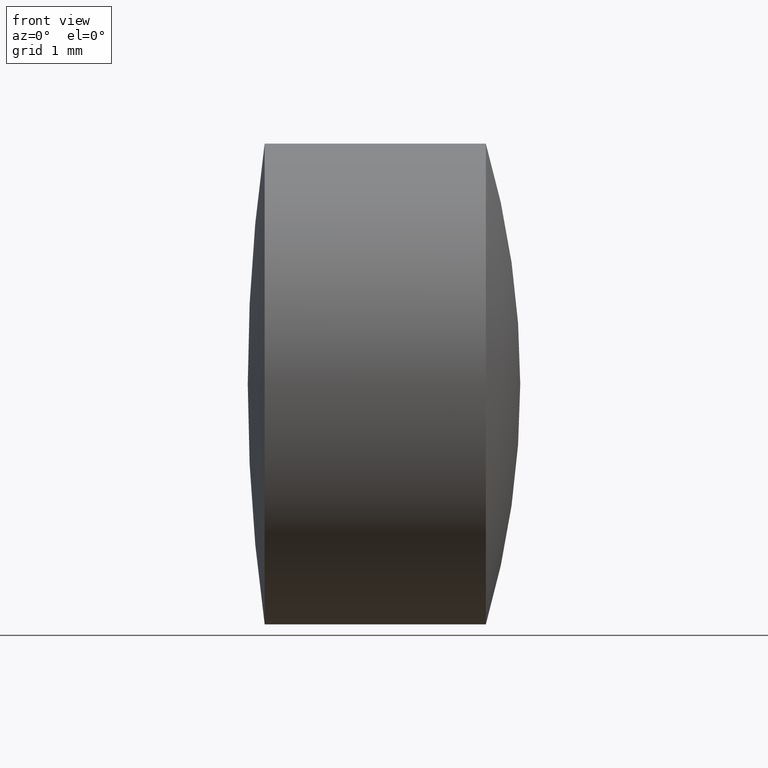
[diagram: clean part render]
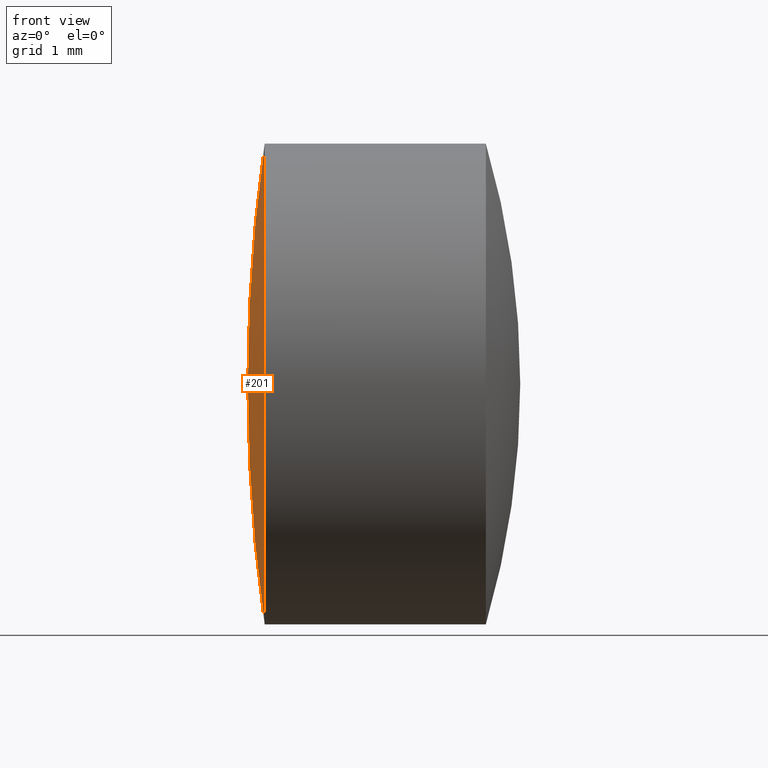
[diagram: same view with one face highlighted and labeled with its STEP entity id]
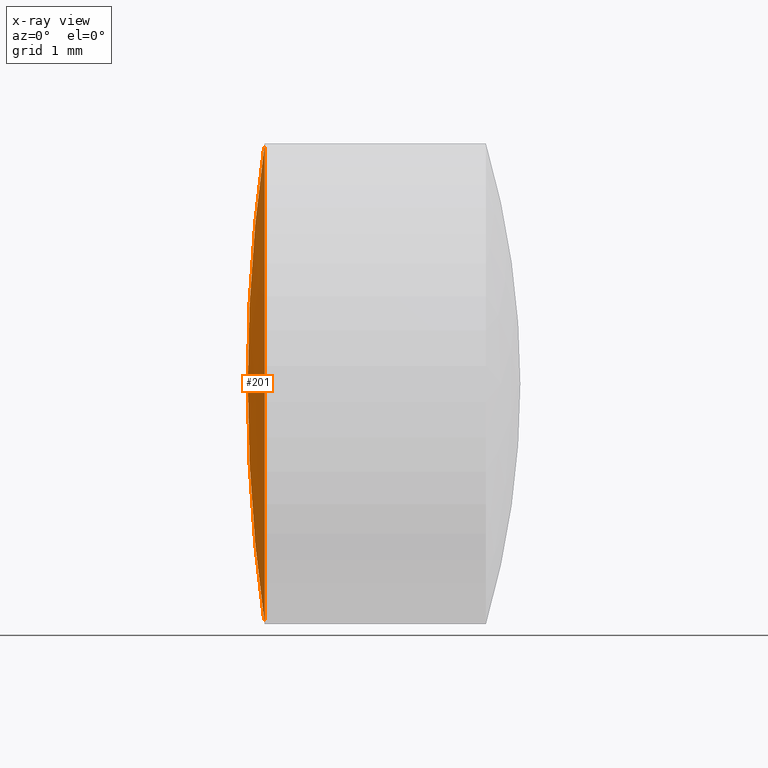
[diagram: x-ray of the same camera — body ghosted, the highlighted face saturated]
A machine part, front view. The second image highlights one B-rep face of the part: STEP entity #201.
The next image is the same camera in x-ray: the body ghosted, the highlighted face saturated — about 0% of this face is hidden behind the body in this view.
In plain terms, the highlighted spherical surface has radius 22.7 mm.
Its self-contained STEP definition (entity closure, byte-faithful):
#8 = DIRECTION ( 'NONE',  ( -0.0000000000000000000, 1.000000000000000000, 1.224646799147353200E-016 ) ) ;
#12 = EDGE_CURVE ( 'NONE', #299, #139, #310, .T. ) ;
#17 = CARTESIAN_POINT ( 'NONE',  ( 23.94795948408310700, 0.0000000000000000000, -4.028288892016745600E-017 ) ) ;
#18 = FACE_OUTER_BOUND ( 'NONE', #100, .T. ) ;
#26 = SPHERICAL_SURFACE ( 'NONE', #230, 22.70000000000001700 ) ;
#37 = CARTESIAN_POINT ( 'NONE',  ( 1.471096379993141400, 0.0000000000000000000, 0.0000000000000000000 ) ) ;
#64 = CARTESIAN_POINT ( 'NONE',  ( 1.471096379993142000, 0.0000000000000000000, 3.174999999999998500 ) ) ;
#68 = CARTESIAN_POINT ( 'NONE',  ( 1.471096379993142000, 3.888253587292844600E-016, -3.174999999999998500 ) ) ;
#74 = CIRCLE ( 'NONE', #291, 22.70000000000001700 ) ;
#78 = ORIENTED_EDGE ( 'NONE', *, *, #209, .T. ) ;
#97 = DIRECTION ( 'NONE',  ( 0.0000000000000000000, 0.0000000000000000000, 1.000000000000000000 ) ) ;
#98 = DIRECTION ( 'NONE',  ( 0.0000000000000000000, 0.0000000000000000000, -1.000000000000000000 ) ) ;
#100 = EDGE_LOOP ( 'NONE', ( #156, #295, #78 ) ) ;
#117 = CARTESIAN_POINT ( 'NONE',  ( 23.94795948408310700, 0.0000000000000000000, -4.028288892016745600E-017 ) ) ;
#118 = AXIS2_PLACEMENT_3D ( 'NONE', #37, #322, #97 ) ;
#125 = EDGE_CURVE ( 'NONE', #299, #167, #258, .T. ) ;
#139 = VERTEX_POINT ( 'NONE', #287 ) ;
#150 = DIRECTION ( 'NONE',  ( 0.0000000000000000000, -1.000000000000000000, 0.0000000000000000000 ) ) ;
#152 = CARTESIAN_POINT ( 'NONE',  ( 23.94795948408310700, 0.0000000000000000000, -4.028288892016745600E-017 ) ) ;
#156 = ORIENTED_EDGE ( 'NONE', *, *, #12, .F. ) ;
#159 = DIRECTION ( 'NONE',  ( 0.0000000000000000000, 0.0000000000000000000, 1.000000000000000000 ) ) ;
#167 = VERTEX_POINT ( 'NONE', #64 ) ;
#201 = ADVANCED_FACE ( 'NONE', ( #18 ), #26, .T. ) ;
#209 = EDGE_CURVE ( 'NONE', #167, #139, #74, .T. ) ;
#225 = DIRECTION ( 'NONE',  ( 0.0000000000000000000, -1.224646799147353200E-016, 1.000000000000000000 ) ) ;
#230 = AXIS2_PLACEMENT_3D ( 'NONE', #17, #337, #159 ) ;
#240 = AXIS2_PLACEMENT_3D ( 'NONE', #117, #8, #225 ) ;
#258 = CIRCLE ( 'NONE', #118, 3.174999999999999800 ) ;
#287 = CARTESIAN_POINT ( 'NONE',  ( 1.247959484083089400, 0.0000000000000000000, 1.349691228112079600E-015 ) ) ;
#291 = AXIS2_PLACEMENT_3D ( 'NONE', #152, #150, #98 ) ;
#295 = ORIENTED_EDGE ( 'NONE', *, *, #125, .T. ) ;
#299 = VERTEX_POINT ( 'NONE', #68 ) ;
#310 = CIRCLE ( 'NONE', #240, 22.70000000000001700 ) ;
#322 = DIRECTION ( 'NONE',  ( -1.000000000000000000, -0.0000000000000000000, -0.0000000000000000000 ) ) ;
#337 = DIRECTION ( 'NONE',  ( 0.0000000000000000000, 1.000000000000000000, 0.0000000000000000000 ) ) ;